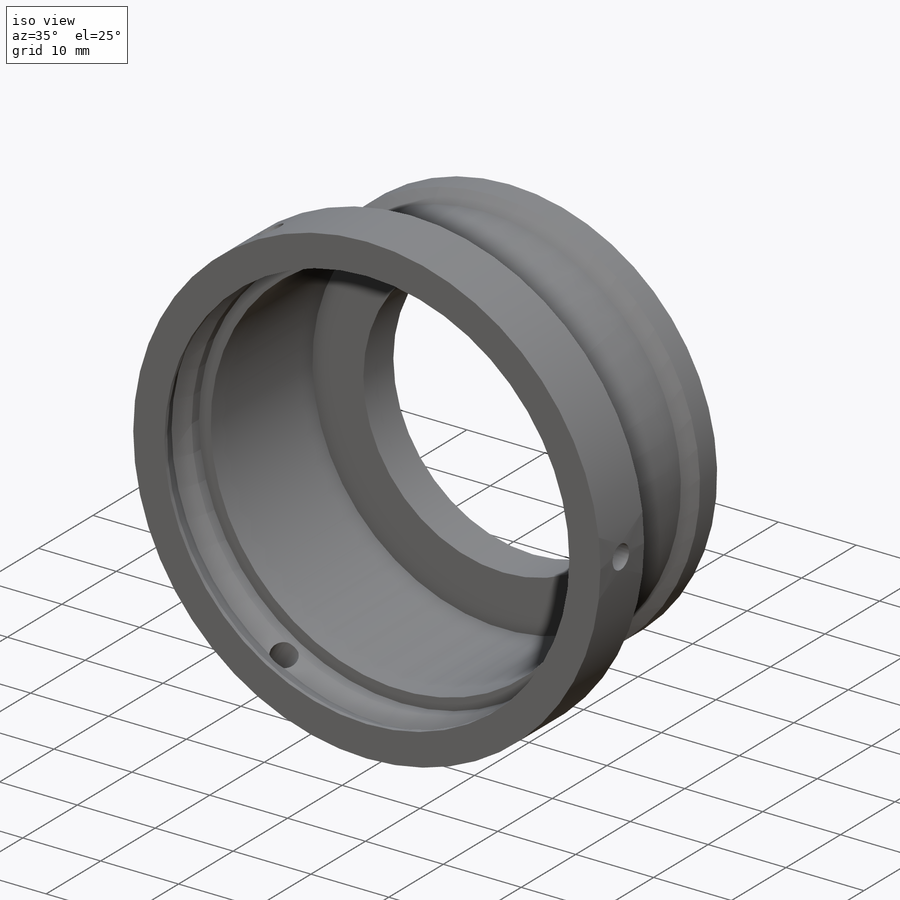
[diagram: iso view]
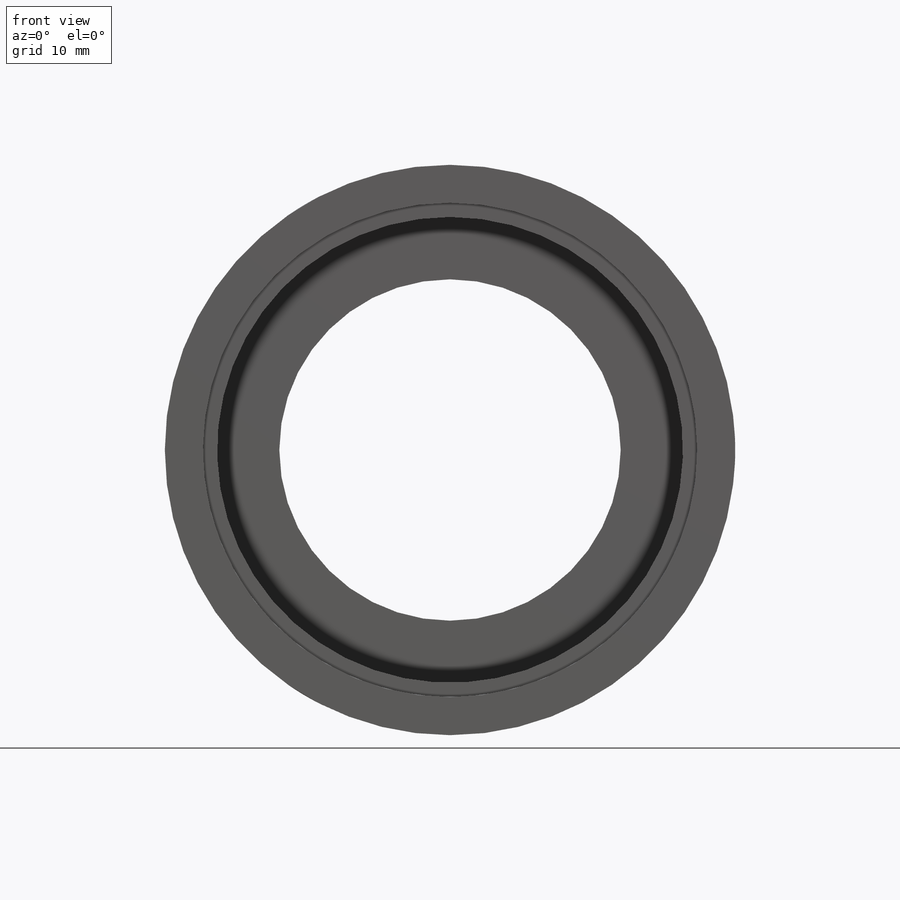
[diagram: front view]
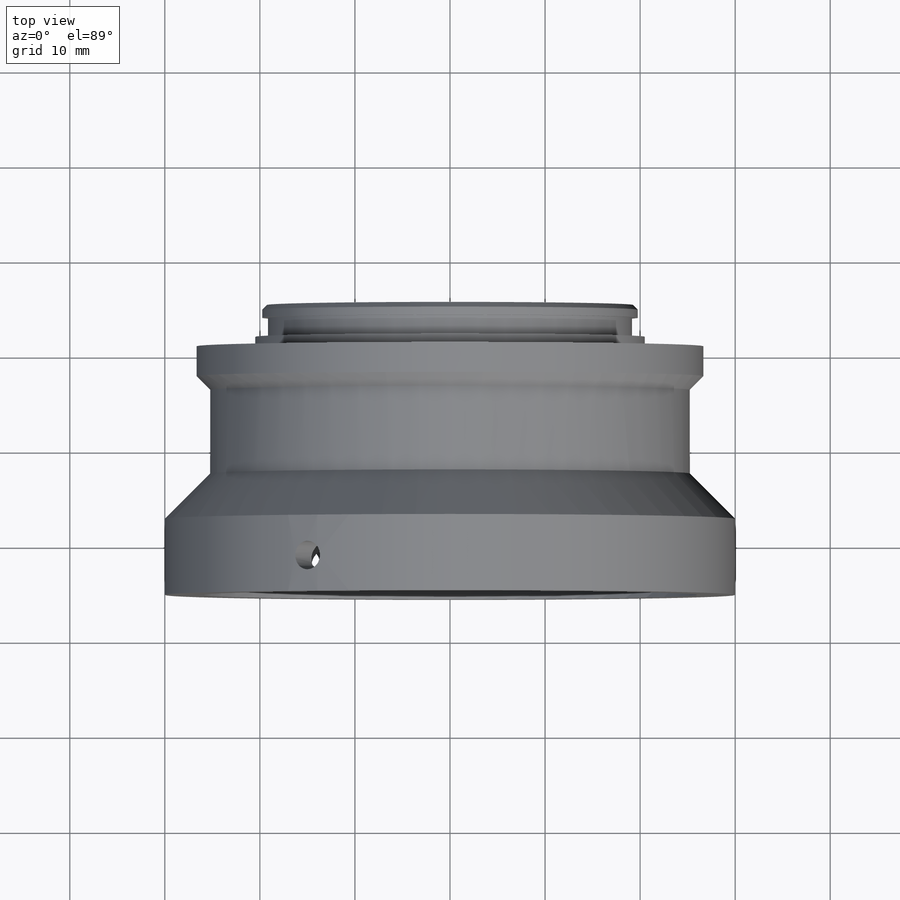
[diagram: top view]
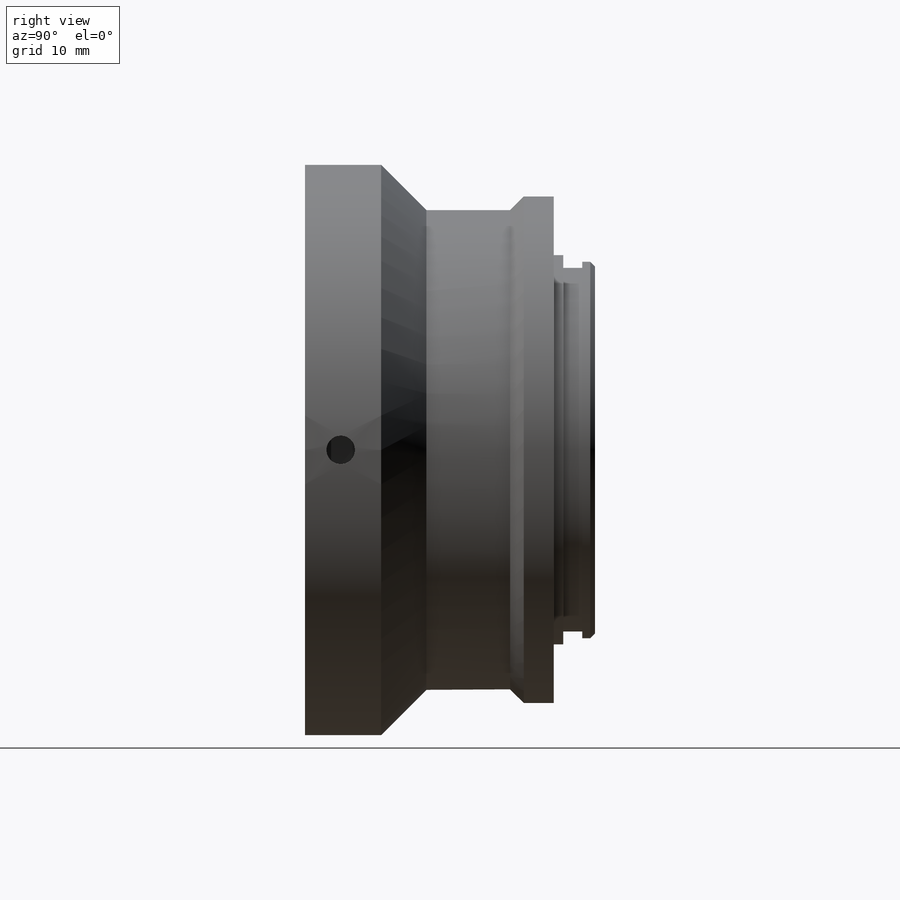
[diagram: right view]
SOLIDWORKS PART (.sldprt)
format: sldprt  version: not decoded by parser v0  size: 320,000 bytes
history: native  units: mm
features: plane x3, sketch x3, cut_extrude x2, material x1, revolve x1, pattern_circular x1 (+8 scaffold rows collapsed)
feature tree (19):
  scaffold x8  (default folders/planes/origin — collapsed)
  material  "1060 slitina"
  plane  "Přední rovina"
  plane  "Horní rovina"
  plane  "Pravá rovina"
  sketch  "Skica2"  dims[c1.D1=53.34mm c1.D2=50.46mm c1.D3=1.44mm c2.D3=~171.073025deg c3.D3=60.0mm c3.D4=30.5mm c3.D5=8.0mm c3.D6=8.8mm c3.D7=150.0mm c3.D8=26.16mm c3.D9=1.0mm c3.D10=41.0mm c3.D11=38.31mm c3.D12=1.2mm c3.D13=1.85mm c3.D14=2.0mm c3.D15=1.34mm c3.D16=4.34mm c3.D17=~0.800191mm c4.D17=45.0deg c4.D18=~1.182236mm c5.D18=90.0deg c6.D18=0.5mm c6.D19=35.91mm c6.D20=25.0mm c6.D21=49.0mm c6.D22=6.35mm c6.D23=5.0mm c6.D24=0.5mm c6.D25=52.0mm c6.D26=1.0mm c6.D7=45.46mm c6.D27=19.3mm]
  revolve  "Rotovat1"  Angle=360deg
  sketch  "Skica3"  dims[c1.D1=3.0mm c1.D2=3.0mm c1.D3=3.0mm c2.D1=3.0mm c2.D5=3.0mm c2.D2=2.5mm c2.D3=3.0mm c2.D4=3.75mm c3.D5=21.25mm]
  cut_extrude  "Odebrat vysunutím1"  [1 undecoded]
  pattern_circular  "Kruhové pole1"  Count=3 Angle=360deg
  sketch  "Skica4"  dims[D1=2.0mm D2=1.4mm]
  cut_extrude  "Odebrat vysunutím2"  Depth=0.25mm
decode coverage: 6 of 7 modeling features carry decoded parameters
note: ~ marks probable driven/reference dimensions
note: 1 parameter value undecoded
note: suppression state not decoded; provenance and decode notes live in map.json
